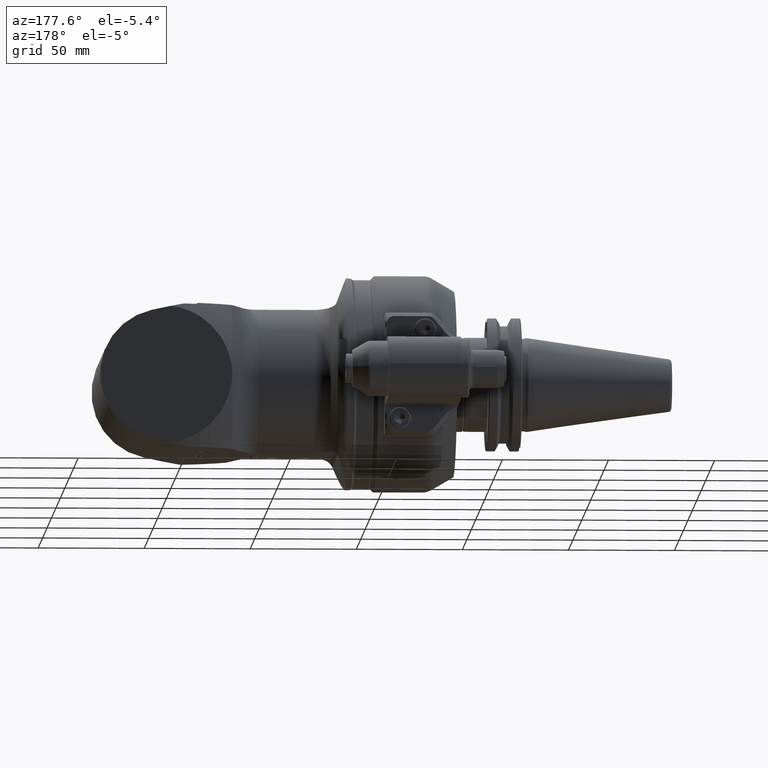
[diagram: clean part render]
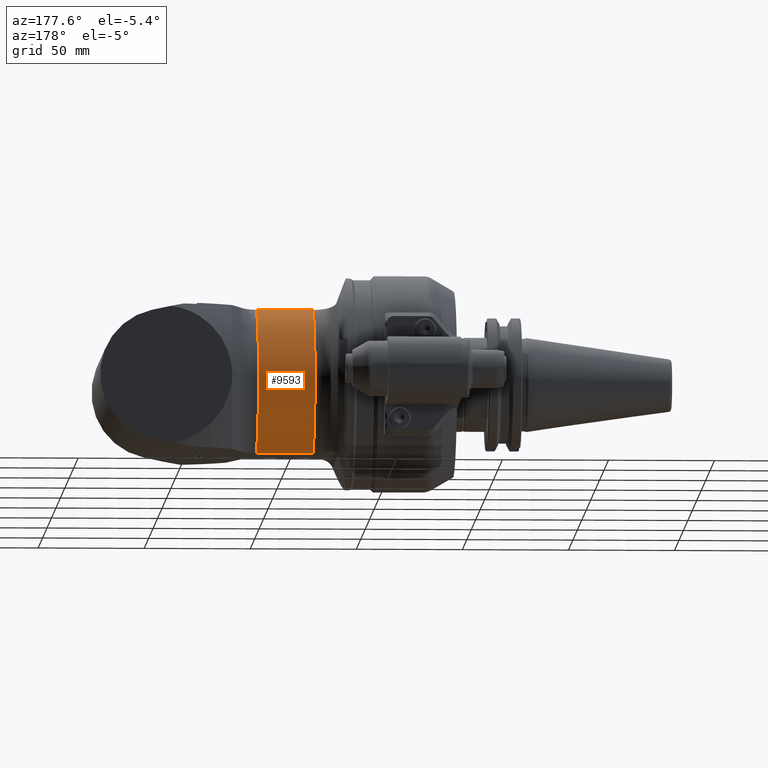
[diagram: same view with one face highlighted and labeled with its STEP entity id]
A machine part, auxiliary view. The second image highlights one B-rep face of the part: STEP entity #9593.
In plain terms, the highlighted cylindrical surface (partial cylindrical patch) has radius 36 mm, axis along (-1, -0, 0).
Its self-contained STEP definition (entity closure, byte-faithful):
#676=LINE('',#13774,#1412);
#690=LINE('',#14035,#1426);
#1412=VECTOR('',#11132,26.67897826015);
#1426=VECTOR('',#11204,26.67897826021);
#2135=CYLINDRICAL_SURFACE('',#10212,36.);
#2278=FACE_OUTER_BOUND('',#2808,.T.);
#2808=EDGE_LOOP('',(#6522,#6523,#6524,#6525));
#3402=CIRCLE('',#10211,36.);
#3403=CIRCLE('',#10213,36.);
#3798=VERTEX_POINT('',#13760);
#3799=VERTEX_POINT('',#13773);
#3859=VERTEX_POINT('',#14023);
#3860=VERTEX_POINT('',#14034);
#4866=EDGE_CURVE('',#3799,#3798,#676,.T.);
#4939=EDGE_CURVE('',#3860,#3859,#690,.T.);
#4961=EDGE_CURVE('',#3860,#3798,#3402,.T.);
#4962=EDGE_CURVE('',#3799,#3859,#3403,.T.);
#6522=ORIENTED_EDGE('',*,*,#4962,.F.);
#6523=ORIENTED_EDGE('',*,*,#4866,.T.);
#6524=ORIENTED_EDGE('',*,*,#4961,.F.);
#6525=ORIENTED_EDGE('',*,*,#4939,.T.);
#9593=ADVANCED_FACE('',(#2278),#2135,.T.);
#10211=AXIS2_PLACEMENT_3D('',#14149,#11233,#11234);
#10212=AXIS2_PLACEMENT_3D('',#14150,#11235,#11236);
#10213=AXIS2_PLACEMENT_3D('',#14151,#11237,#11238);
#11132=DIRECTION('',(-1.,0.,0.));
#11204=DIRECTION('',(1.,0.,0.));
#11233=DIRECTION('center_axis',(-1.,0.,0.));
#11234=DIRECTION('ref_axis',(0.,0.328671099061113,0.944444444444437));
#11235=DIRECTION('center_axis',(-1.,0.,0.));
#11236=DIRECTION('ref_axis',(0.,1.,1.22464679914735E-16));
#11237=DIRECTION('center_axis',(1.,0.,0.));
#11238=DIRECTION('ref_axis',(0.,1.,0.));
#13760=CARTESIAN_POINT('',(207.1879662404,11.8321595662,-34.));
#13773=CARTESIAN_POINT('',(233.8669445005,11.8321595662,-34.));
#13774=CARTESIAN_POINT('',(233.8669445005,11.8321595662,-34.));
#14023=CARTESIAN_POINT('',(233.8669445006,11.8321595662,34.));
#14034=CARTESIAN_POINT('',(207.1879662404,11.8321595662,34.));
#14035=CARTESIAN_POINT('',(207.1879662404,11.8321595662,34.));
#14149=CARTESIAN_POINT('Origin',(207.1879662404,0.,0.));
#14150=CARTESIAN_POINT('Origin',(217.7095440971,0.,0.));
#14151=CARTESIAN_POINT('Origin',(233.8669445005,0.,0.));